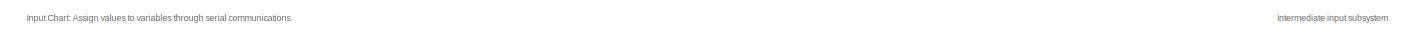
[diagram: root canvas - part 1/7, top left region]
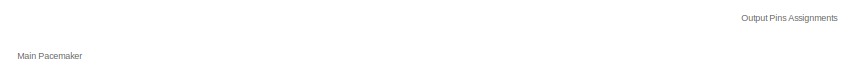
[diagram: root canvas - part 2/7, top right region]
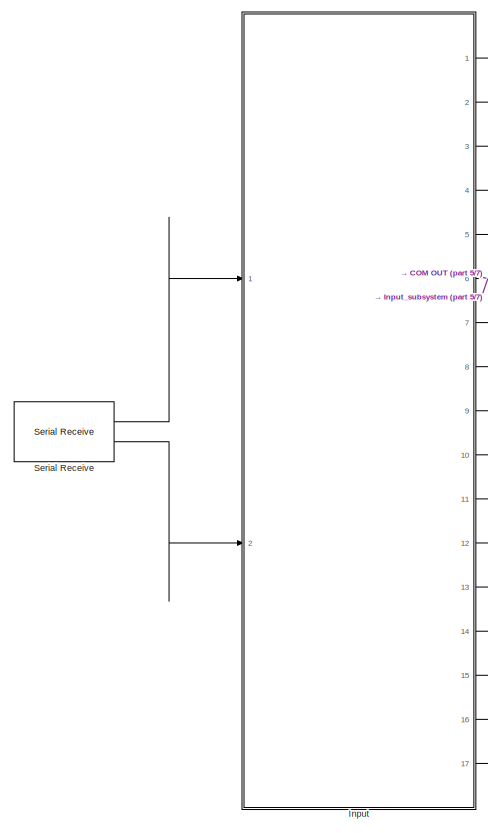
[diagram: root canvas - part 3/7, top left region]
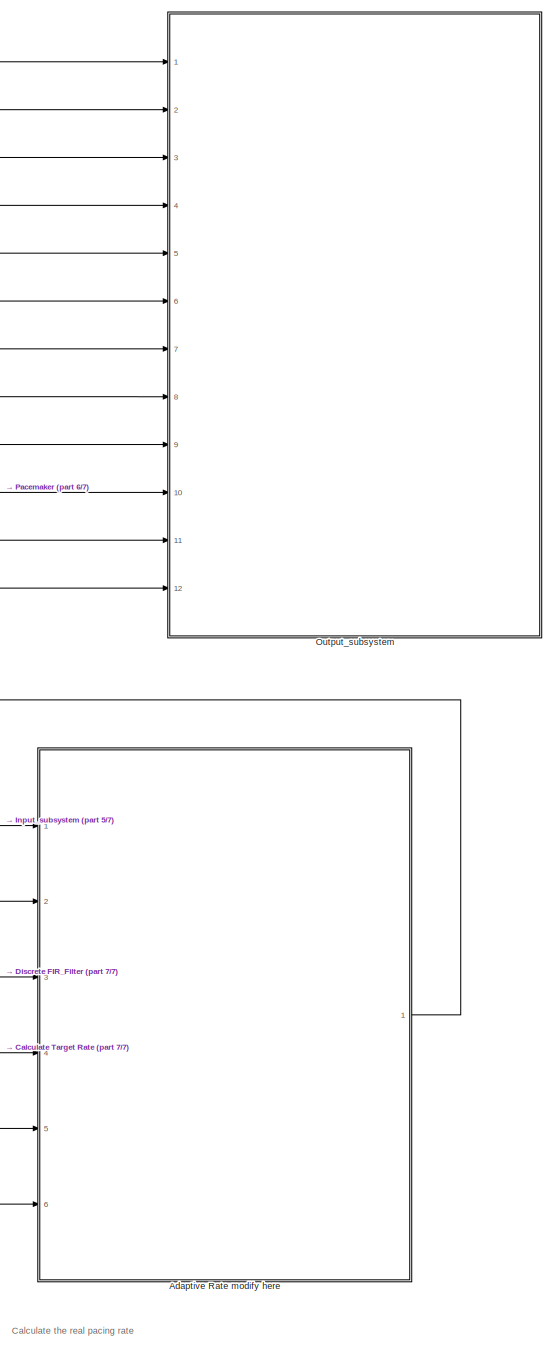
[diagram: root canvas - part 4/7, right side, full height]
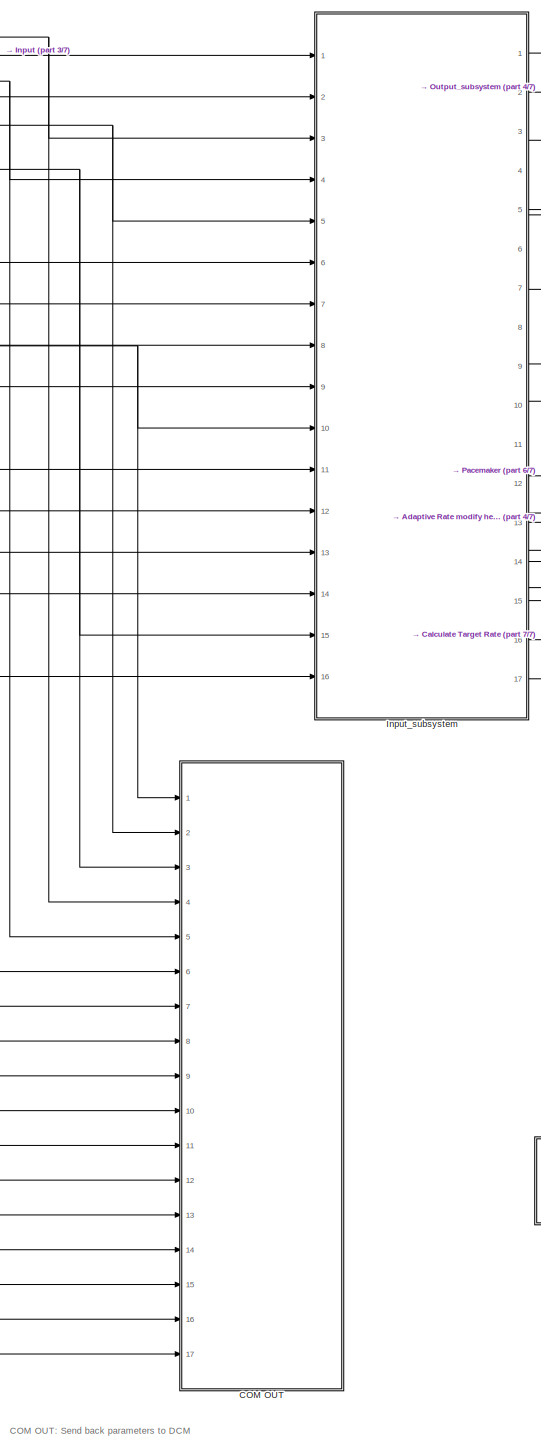
[diagram: root canvas - part 5/7, center side, full height]
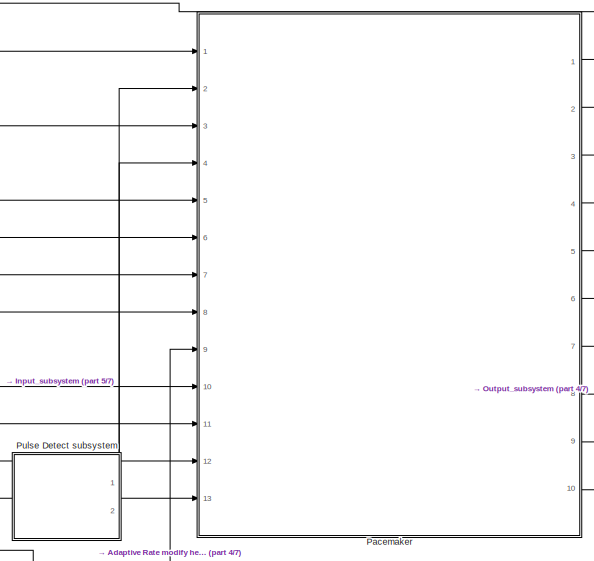
[diagram: root canvas - part 6/7, top right region]
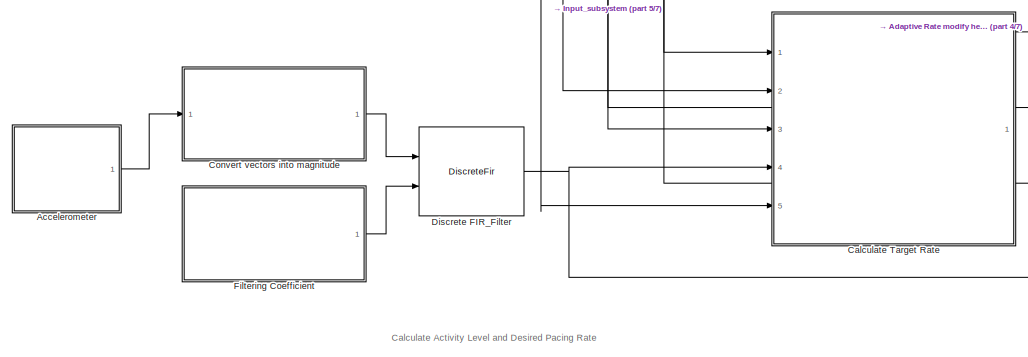
[diagram: root canvas - part 7/7, bottom center region]
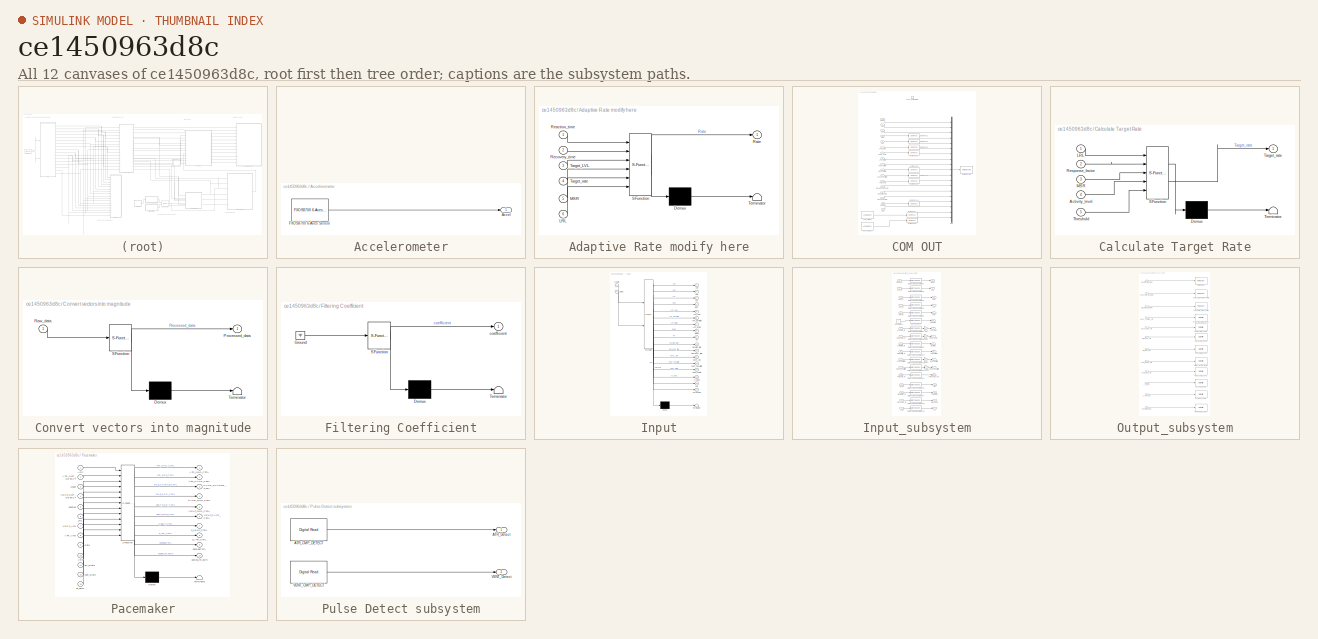
[diagram: thumbnail index - all 12 canvases of the model, root first then tree order]
MODEL slx_ce1450963d8c
KIND model
CONFIG AbsTol = auto
CONFIG EnableMultiTasking = on
CONFIG FixedStep = 1e-3
CONFIG MaxStep = auto
CONFIG MinStep = auto
CONFIG RelTol = 1e-3
CONFIG SampleTimeConstraint = Unconstrained
CONFIG SolverName = FixedStepAuto
CONFIG StartTime = 0.0
CONFIG StopTime = inf
BLOCK [SubSystem] Accelerometer
  Ports = [0, 1]
  RequestExecContextInheritance = off
BLOCK [Outport] Accelerometer/Accel
BLOCK [Reference] Accelerometer/FXOS8700 6-Axes Sensor  REF=frdmk64flib/FXOS8700 6-Axes Sensor
  Ports = [0, 1]
  SourceBlock = frdmk64flib/FXOS8700 6-Axes Sensor
  SourceProductBaseCode = EC_FRDM_K64F
  SourceType = freedomk64f.fxos8700
BLOCK [SubSystem] Adaptive Rate modify here
  ErrorFcn = Stateflow.Translate.translate
  PermitHierarchicalResolution = ExplicitOnly
  PortSchema = {"entries":[{"content":{"sides":[{"content":{"connectorIds":["In6","In5","In1","In2","In4","In3"]},"type":"ConnectorPlacement.EquallySpacedRectSide","uuid":"39a759a2-6776-4dc2-bf13-d3cf12be31b7"},{"content":{"connectorIds":["Out1"],"side":"RIGHT"},"type":"ConnectorPlacement.EquallySpacedRectSide","uuid":"311af287-9fec-40a9-86fa-7b14c4c20eba"},{"content":{"connectorIds":[],"side":"TOP"},"type":"Con...<+270ch>
  Ports = [6, 1]
  RequestExecContextInheritance = off
  SFBlockType = Chart
  TreatAsAtomicUnit = on
BLOCK [Demux] Adaptive Rate modify here/ Demux 
  Outputs = 1
  Ports = [1, 1]
BLOCK [S-Function] Adaptive Rate modify here/ SFunction 
  EnableBusSupport = on
  FunctionName = sf_sfun
  PortCounts = [6 2]
  Ports = [6, 2]
  SFcnIsStateOwnerBlock = off
  SFunctionDeploymentMode = off
  Tag = Stateflow S-Function 8
BLOCK [Terminator] Adaptive Rate modify here/ Terminator 
BLOCK [Inport] Adaptive Rate modify here/LRL
  Port = 6
BLOCK [Inport] Adaptive Rate modify here/MSR
  Port = 5
BLOCK [Outport] Adaptive Rate modify here/Rate
BLOCK [Inport] Adaptive Rate modify here/Reaction_time
BLOCK [Inport] Adaptive Rate modify here/Recovery_time
  Port = 2
BLOCK [Inport] Adaptive Rate modify here/Target_LVL
  Port = 3
BLOCK [Inport] Adaptive Rate modify here/Target_rate
  Port = 4
BLOCK [SubSystem] COM OUT
  Ports = [17, 0, 0, 1]
  RequestExecContextInheritance = off
  TreatAsAtomicUnit = on
BLOCK [Inport] COM OUT/ARP
  OutDataTypeStr = uint16
  Port = 4
BLOCK [Reference] COM OUT/ATR_SIGNAL  REF=frdmk64flib/Analog Input
  Ports = [0, 1]
  SourceBlock = frdmk64flib/Analog Input
  SourceProductBaseCode = EC_FRDM_K64F
  SourceType = freedomk64f.AnalogInput
BLOCK [Inport] COM OUT/ATR_amp
  OutDataTypeStr = single
  Port = 6
BLOCK [Inport] COM OUT/ATR_width
  OutDataTypeStr = uint8
  Port = 8
BLOCK [Reference] COM OUT/Byte Pack1  REF=etargetslib/Byte Pack
  Ports = [1, 1]
  SourceBlock = etargetslib/Byte Pack
  SourceProductBaseCode = ME
  SourceType = Byte pack
BLOCK [Reference] COM OUT/Byte Pack14  REF=etargetslib/Byte Pack
  Ports = [1, 1]
  SourceBlock = etargetslib/Byte Pack
  SourceProductBaseCode = ME
  SourceType = Byte pack
BLOCK [Reference] COM OUT/Byte Pack2  REF=etargetslib/Byte Pack
  Ports = [1, 1]
  SourceBlock = etargetslib/Byte Pack
  SourceProductBaseCode = ME
  SourceType = Byte pack
BLOCK [Reference] COM OUT/Byte Pack3  REF=etargetslib/Byte Pack
  Ports = [1, 1]
  SourceBlock = etargetslib/Byte Pack
  SourceProductBaseCode = ME
  SourceType = Byte pack
BLOCK [Reference] COM OUT/Byte Pack4  REF=etargetslib/Byte Pack
  Ports = [1, 1]
  SourceBlock = etargetslib/Byte Pack
  SourceProductBaseCode = ME
  SourceType = Byte pack
BLOCK [Reference] COM OUT/Byte Pack5  REF=etargetslib/Byte Pack
  Ports = [1, 1]
  SourceBlock = etargetslib/Byte Pack
  SourceProductBaseCode = ME
  SourceType = Byte pack
BLOCK [Reference] COM OUT/Byte Pack6  REF=etargetslib/Byte Pack
  Ports = [1, 1]
  SourceBlock = etargetslib/Byte Pack
  SourceProductBaseCode = ME
  SourceType = Byte pack
BLOCK [Reference] COM OUT/Byte Pack7  REF=etargetslib/Byte Pack
  Ports = [1, 1]
  SourceBlock = etargetslib/Byte Pack
  SourceProductBaseCode = ME
  SourceType = Byte pack
BLOCK [Reference] COM OUT/Byte Pack8  REF=etargetslib/Byte Pack
  Ports = [1, 1]
  SourceBlock = etargetslib/Byte Pack
  SourceProductBaseCode = ME
  SourceType = Byte pack
BLOCK [Reference] COM OUT/Byte Pack9  REF=etargetslib/Byte Pack
  Ports = [1, 1]
  SourceBlock = etargetslib/Byte Pack
  SourceProductBaseCode = ME
  SourceType = Byte pack
BLOCK [Inport] COM OUT/LRL
  OutDataTypeStr = uint8
  Port = 2
BLOCK [Inport] COM OUT/MSR
  OutDataTypeStr = uint8
  Port = 3
BLOCK [Inport] COM OUT/Mode
  OutDataTypeStr = uint8
BLOCK [Mux] COM OUT/Mux
  DisplayOption = bar
  Inputs = 19
  Ports = [19, 1]
BLOCK [Inport] COM OUT/ReactionTime
  OutDataTypeStr = uint8
  Port = 14
BLOCK [Inport] COM OUT/RecoveryTime
  OutDataTypeStr = uint8
  Port = 15
BLOCK [Inport] COM OUT/ResponseFactor
  OutDataTypeStr = uint8
  Port = 13
BLOCK [Reference] COM OUT/Serial Transmit  REF=frdmk64flib/Serial Transmit
  Ports = [1]
  SourceBlock = frdmk64flib/Serial Transmit
  SourceProductBaseCode = EC_FRDM_K64F
  SourceType = freedomk64f.SCIWrite
BLOCK [Inport] COM OUT/Threshold
  OutDataTypeStr = single
  Port = 12
BLOCK [Inport] COM OUT/URL
  OutDataTypeStr = uint8
  Port = 17
BLOCK [Reference] COM OUT/VENT_SIGNAL  REF=frdmk64flib/Analog Input
  Ports = [0, 1]
  SourceBlock = frdmk64flib/Analog Input
  SourceProductBaseCode = EC_FRDM_K64F
  SourceType = freedomk64f.AnalogInput
BLOCK [Inport] COM OUT/VENT_amp
  OutDataTypeStr = single
  Port = 7
BLOCK [Inport] COM OUT/VENT_width
  OutDataTypeStr = uint8
  Port = 9
BLOCK [Inport] COM OUT/VRP
  OutDataTypeStr = uint16
  Port = 5
BLOCK [Inport] COM OUT/atr_sensitivity
  OutDataTypeStr = single
  Port = 10
BLOCK [Inport] COM OUT/avDelay
  OutDataTypeStr = uint16
  Port = 16
BLOCK [TriggerPort] COM OUT/send_parameters
  FunctionName = send_parameters
  IsSimulinkFunction = on
  Ports = []
  StatesWhenEnabling = held
  TriggerType = function-call
  VariantControl = (inherit)
BLOCK [Inport] COM OUT/vent_sensitivity
  OutDataTypeStr = single
  Port = 11
BLOCK [SubSystem] Calculate Target Rate
  ErrorFcn = Stateflow.Translate.translate
  PermitHierarchicalResolution = ExplicitOnly
  Ports = [5, 1]
  RequestExecContextInheritance = off
  SFBlockType = MATLAB Function
  TreatAsAtomicUnit = on
BLOCK [Demux] Calculate Target Rate/ Demux 
  Outputs = 1
  Ports = [1, 1]
BLOCK [S-Function] Calculate Target Rate/ SFunction 
  EnableBusSupport = on
  FunctionName = sf_sfun
  PortCounts = [5 2]
  Ports = [5, 2]
  SFcnIsStateOwnerBlock = off
  SFunctionDeploymentMode = off
  Tag = Stateflow S-Function 6
BLOCK [Terminator] Calculate Target Rate/ Terminator 
BLOCK [Inport] Calculate Target Rate/Activity_level
  Port = 4
BLOCK [Inport] Calculate Target Rate/LRL
BLOCK [Inport] Calculate Target Rate/MSR
  Port = 3
BLOCK [Inport] Calculate Target Rate/Response_factor
  Port = 2
BLOCK [Outport] Calculate Target Rate/Target_rate
BLOCK [Inport] Calculate Target Rate/Threshold
  Port = 5
BLOCK [SubSystem] Convert vectors into magnitude
  ErrorFcn = Stateflow.Translate.translate
  PermitHierarchicalResolution = ExplicitOnly
  Ports = [1, 1]
  RequestExecContextInheritance = off
  SFBlockType = MATLAB Function
  TreatAsAtomicUnit = on
BLOCK [Demux] Convert vectors into magnitude/ Demux 
  Outputs = 1
  Ports = [1, 1]
BLOCK [S-Function] Convert vectors into magnitude/ SFunction 
  EnableBusSupport = on
  FunctionName = sf_sfun
  PortCounts = [1 2]
  Ports = [1, 2]
  SFcnIsStateOwnerBlock = off
  SFunctionDeploymentMode = off
  Tag = Stateflow S-Function 9
BLOCK [Terminator] Convert vectors into magnitude/ Terminator 
BLOCK [Outport] Convert vectors into magnitude/Processed_data
BLOCK [Inport] Convert vectors into magnitude/Raw_data
BLOCK [DiscreteFir] Discrete FIR_Filter
  CoefSource = Input port
  Coefficients = [0.05, 0.05, 0.05, 0.05, 0.05, 0.05, 0.05, 0.05, 0.05, 0.05, 0.05, 0.05, 0.05, 0.05, 0.05, 0.05, 0.05, 0.05, 0.05, 0.05]
  InputPortMap = u0,u1
  OutputPortMap = o0
  Ports = [2, 1]
  SampleTime = 0.01
BLOCK [SubSystem] Filtering Coefficient
  ErrorFcn = Stateflow.Translate.translate
  PermitHierarchicalResolution = ExplicitOnly
  Ports = [0, 1]
  RequestExecContextInheritance = off
  SFBlockType = MATLAB Function
  TreatAsAtomicUnit = on
BLOCK [Demux] Filtering Coefficient/ Demux 
  Outputs = 1
  Ports = [1, 1]
BLOCK [Ground] Filtering Coefficient/ Ground 
BLOCK [S-Function] Filtering Coefficient/ SFunction 
  EnableBusSupport = on
  FunctionName = sf_sfun
  PortCounts = [1 2]
  Ports = [1, 2]
  SFcnIsStateOwnerBlock = off
  SFunctionDeploymentMode = off
  Tag = Stateflow S-Function 3
BLOCK [Terminator] Filtering Coefficient/ Terminator 
BLOCK [Outport] Filtering Coefficient/coefficient
BLOCK [SubSystem] Input
  ErrorFcn = Stateflow.Translate.translate
  PermitHierarchicalResolution = ExplicitOnly
  PortSchema = {"entries":[{"content":{"sides":[{"content":{"connectorIds":["In1","In2"]},"type":"ConnectorPlacement.EquallySpacedRectSide","uuid":"ee3611de-e013-4c9d-af16-b184b46b299a"},{"content":{"connectorIds":["Out6","Out13","Out1","Out2","Out3","Out5","Out7","Out12","Out14","Out8","Out15","Out10","Out11","Out9","Out4","Out17","Out16"],"side":"RIGHT"},"type":"ConnectorPlacement.EquallySpacedRectSide","uuid"...<+366ch>
  Ports = [2, 17]
  RequestExecContextInheritance = off
  SFBlockType = Chart
  TreatAsAtomicUnit = on
BLOCK [Demux] Input/ Demux 
  Outputs = 1
  Ports = [1, 1]
BLOCK [S-Function] Input/ SFunction 
  EnableBusSupport = on
  FunctionName = sf_sfun
  PortCounts = [2 18]
  Ports = [2, 18]
  SFcnIsStateOwnerBlock = off
  SFunctionDeploymentMode = off
  Tag = Stateflow S-Function 1
BLOCK [Terminator] Input/ Terminator 
BLOCK [Outport] Input/ARP
BLOCK [Outport] Input/ATR_Amp
  Port = 5
BLOCK [Outport] Input/ATR_Sensitivity
  Port = 6
BLOCK [Outport] Input/ATR_Width
  Port = 7
BLOCK [Outport] Input/AV_delay
  Port = 15
BLOCK [Outport] Input/LRL
  Port = 3
BLOCK [Outport] Input/MSR
  Port = 4
BLOCK [Outport] Input/Mode
  Port = 8
BLOCK [Outport] Input/RF
  Port = 9
BLOCK [Outport] Input/Reaction_time
  Port = 10
BLOCK [Outport] Input/Recovery_time
  Port = 11
BLOCK [Outport] Input/Threshold
  Port = 17
BLOCK [Outport] Input/URL
  Port = 16
BLOCK [Outport] Input/VENT_Amp
  Port = 12
BLOCK [Outport] Input/VENT_Sensitivity
  Port = 13
BLOCK [Outport] Input/VENT_Width
  Port = 14
BLOCK [Outport] Input/VRP
  Port = 2
BLOCK [Inport] Input/rxdata
BLOCK [Inport] Input/status
  Port = 2
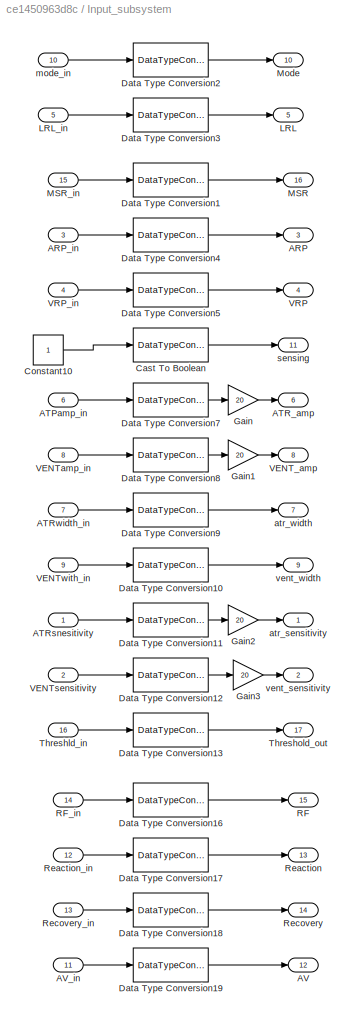
BLOCK [SubSystem] Input_subsystem
  Ports = [16, 17]
  RequestExecContextInheritance = off
BLOCK [Outport] Input_subsystem/ARP
  Port = 3
BLOCK [Inport] Input_subsystem/ARP_in
  Port = 3
  Unit = ms
BLOCK [Inport] Input_subsystem/ATPamp_in
  Port = 6
  Unit = ms
BLOCK [Outport] Input_subsystem/ATR_amp
  Port = 6
BLOCK [Inport] Input_subsystem/ATRsnesitivity
  Unit = ms
BLOCK [Inport] Input_subsystem/ATRwidth_in
  Port = 7
  Unit = ms
BLOCK [Outport] Input_subsystem/AV
  Port = 12
BLOCK [Inport] Input_subsystem/AV_in
  Port = 11
  Unit = ms
BLOCK [DataTypeConversion] Input_subsystem/Cast To Boolean
  OutDataTypeStr = boolean
  RndMeth = Floor
  SaturateOnIntegerOverflow = off
BLOCK [Constant] Input_subsystem/Constant10
BLOCK [DataTypeConversion] Input_subsystem/Data Type Conversion1
  OutDataTypeStr = double
  RndMeth = Floor
  SaturateOnIntegerOverflow = off
BLOCK [DataTypeConversion] Input_subsystem/Data Type Conversion10
  OutDataTypeStr = double
  RndMeth = Floor
  SaturateOnIntegerOverflow = off
BLOCK [DataTypeConversion] Input_subsystem/Data Type Conversion11
  OutDataTypeStr = double
  RndMeth = Floor
  SaturateOnIntegerOverflow = off
BLOCK [DataTypeConversion] Input_subsystem/Data Type Conversion12
  OutDataTypeStr = double
  RndMeth = Floor
  SaturateOnIntegerOverflow = off
BLOCK [DataTypeConversion] Input_subsystem/Data Type Conversion13
  OutDataTypeStr = double
  RndMeth = Floor
  SaturateOnIntegerOverflow = off
BLOCK [DataTypeConversion] Input_subsystem/Data Type Conversion16
  OutDataTypeStr = double
  RndMeth = Floor
  SaturateOnIntegerOverflow = off
BLOCK [DataTypeConversion] Input_subsystem/Data Type Conversion17
  OutDataTypeStr = double
  RndMeth = Floor
  SaturateOnIntegerOverflow = off
BLOCK [DataTypeConversion] Input_subsystem/Data Type Conversion18
  OutDataTypeStr = double
  RndMeth = Floor
  SaturateOnIntegerOverflow = off
BLOCK [DataTypeConversion] Input_subsystem/Data Type Conversion19
  OutDataTypeStr = double
  RndMeth = Floor
  SaturateOnIntegerOverflow = off
BLOCK [DataTypeConversion] Input_subsystem/Data Type Conversion2
  OutDataTypeStr = double
  RndMeth = Floor
  SaturateOnIntegerOverflow = off
BLOCK [DataTypeConversion] Input_subsystem/Data Type Conversion3
  OutDataTypeStr = double
  RndMeth = Floor
  SaturateOnIntegerOverflow = off
BLOCK [DataTypeConversion] Input_subsystem/Data Type Conversion4
  OutDataTypeStr = double
  RndMeth = Floor
  SaturateOnIntegerOverflow = off
BLOCK [DataTypeConversion] Input_subsystem/Data Type Conversion5
  OutDataTypeStr = double
  RndMeth = Floor
  SaturateOnIntegerOverflow = off
BLOCK [DataTypeConversion] Input_subsystem/Data Type Conversion7
  OutDataTypeStr = double
  RndMeth = Floor
  SaturateOnIntegerOverflow = off
BLOCK [DataTypeConversion] Input_subsystem/Data Type Conversion8
  OutDataTypeStr = double
  RndMeth = Floor
  SaturateOnIntegerOverflow = off
BLOCK [DataTypeConversion] Input_subsystem/Data Type Conversion9
  OutDataTypeStr = double
  RndMeth = Floor
  SaturateOnIntegerOverflow = off
BLOCK [Gain] Input_subsystem/Gain
  Gain = 20
BLOCK [Gain] Input_subsystem/Gain1
  Gain = 20
BLOCK [Gain] Input_subsystem/Gain2
  Gain = 20
BLOCK [Gain] Input_subsystem/Gain3
  Gain = 20
BLOCK [Outport] Input_subsystem/LRL
  Port = 5
BLOCK [Inport] Input_subsystem/LRL_in
  Port = 5
  Unit = ms
BLOCK [Outport] Input_subsystem/MSR
  Port = 16
BLOCK [Inport] Input_subsystem/MSR_in
  Port = 15
  Unit = ms
BLOCK [Outport] Input_subsystem/Mode
  Port = 10
BLOCK [Outport] Input_subsystem/RF
  Port = 15
BLOCK [Inport] Input_subsystem/RF_in
  Port = 14
  Unit = ms
BLOCK [Outport] Input_subsystem/Reaction
  Port = 13
BLOCK [Inport] Input_subsystem/Reaction_in
  Port = 12
  Unit = ms
BLOCK [Outport] Input_subsystem/Recovery
  Port = 14
BLOCK [Inport] Input_subsystem/Recovery_in
  Port = 13
  Unit = ms
BLOCK [Inport] Input_subsystem/Threshld_in
  Port = 16
  Unit = ms
BLOCK [Outport] Input_subsystem/Threshold_out
  Port = 17
BLOCK [Outport] Input_subsystem/VENT_amp
  Port = 8
BLOCK [Inport] Input_subsystem/VENTamp_in
  Port = 8
  Unit = ms
BLOCK [Inport] Input_subsystem/VENTsensitivity
  Port = 2
  Unit = ms
BLOCK [Inport] Input_subsystem/VENTwith_in
  Port = 9
  Unit = ms
BLOCK [Outport] Input_subsystem/VRP
  Port = 4
BLOCK [Inport] Input_subsystem/VRP_in
  Port = 4
  Unit = ms
BLOCK [Outport] Input_subsystem/atr_sensitivity
BLOCK [Outport] Input_subsystem/atr_width
  Port = 7
BLOCK [Inport] Input_subsystem/mode_in
  Port = 10
  Unit = ms
BLOCK [Outport] Input_subsystem/sensing
  Port = 11
BLOCK [Outport] Input_subsystem/vent_sensitivity
  Port = 2
BLOCK [Outport] Input_subsystem/vent_width
  Port = 9
BLOCK [SubSystem] Output_subsystem
  Ports = [12]
  RequestExecContextInheritance = off
BLOCK [Inport] Output_subsystem/ z_vent_ctrl
  Port = 10
BLOCK [Reference] Output_subsystem/ATR_CMP_REF_PWM  REF=frdmk64flib/PWM Output
  Ports = [1]
  SourceBlock = frdmk64flib/PWM Output
  SourceProductBaseCode = EC_FRDM_K64F
  SourceType = freedomk64f.PWMOutput
BLOCK [Reference] Output_subsystem/ATR_GND_CTR  REF=frdmk64flib/Digital Write
  Ports = [1]
  SourceBlock = frdmk64flib/Digital Write
  SourceProductBaseCode = EC_FRDM_K64F
  SourceType = freedomk64f.DigitalWrite
BLOCK [Reference] Output_subsystem/ATR_PACE_CTRL  REF=frdmk64flib/Digital Write
  Ports = [1]
  SourceBlock = frdmk64flib/Digital Write
  SourceProductBaseCode = EC_FRDM_K64F
  SourceType = freedomk64f.DigitalWrite
BLOCK [Reference] Output_subsystem/FRONTEND_CTRL  REF=frdmk64flib/Digital Write
  Ports = [1]
  SourceBlock = frdmk64flib/Digital Write
  SourceProductBaseCode = EC_FRDM_K64F
  SourceType = freedomk64f.DigitalWrite
BLOCK [Reference] Output_subsystem/PACE_CHARGE_CTRL  REF=frdmk64flib/Digital Write
  Ports = [1]
  SourceBlock = frdmk64flib/Digital Write
  SourceProductBaseCode = EC_FRDM_K64F
  SourceType = freedomk64f.DigitalWrite
BLOCK [Reference] Output_subsystem/PACE_GND_CTRL  REF=frdmk64flib/Digital Write
  Ports = [1]
  SourceBlock = frdmk64flib/Digital Write
  SourceProductBaseCode = EC_FRDM_K64F
  SourceType = freedomk64f.DigitalWrite
BLOCK [Reference] Output_subsystem/PWM Output  REF=frdmk64flib/PWM Output
  Ports = [1]
  SourceBlock = frdmk64flib/PWM Output
  SourceProductBaseCode = EC_FRDM_K64F
  SourceType = freedomk64f.PWMOutput
BLOCK [Reference] Output_subsystem/VENT_CMP_REF_PWM  REF=frdmk64flib/PWM Output
  Ports = [1]
  SourceBlock = frdmk64flib/PWM Output
  SourceProductBaseCode = EC_FRDM_K64F
  SourceType = freedomk64f.PWMOutput
BLOCK [Reference] Output_subsystem/VENT_GND_CTRL  REF=frdmk64flib/Digital Write
  Ports = [1]
  SourceBlock = frdmk64flib/Digital Write
  SourceProductBaseCode = EC_FRDM_K64F
  SourceType = freedomk64f.DigitalWrite
BLOCK [Reference] Output_subsystem/VENT_PACE_CTRL  REF=frdmk64flib/Digital Write
  Ports = [1]
  SourceBlock = frdmk64flib/Digital Write
  SourceProductBaseCode = EC_FRDM_K64F
  SourceType = freedomk64f.DigitalWrite
BLOCK [Reference] Output_subsystem/Z_ATR_CTRL  REF=frdmk64flib/Digital Write
  Ports = [1]
  SourceBlock = frdmk64flib/Digital Write
  SourceProductBaseCode = EC_FRDM_K64F
  SourceType = freedomk64f.DigitalWrite
BLOCK [Reference] Output_subsystem/Z_VENT_CTRL  REF=frdmk64flib/Digital Write
  Ports = [1]
  SourceBlock = frdmk64flib/Digital Write
  SourceProductBaseCode = EC_FRDM_K64F
  SourceType = freedomk64f.DigitalWrite
BLOCK [Inport] Output_subsystem/atr_cmp_ref_pwm
BLOCK [Inport] Output_subsystem/atr_gnd_ctrl
  Port = 4
BLOCK [Inport] Output_subsystem/atr_pace_ctrl
  Port = 7
BLOCK [Inport] Output_subsystem/pace_charge_ctrl
  Port = 5
BLOCK [Inport] Output_subsystem/pace_gnd_ctrl
  Port = 6
BLOCK [Inport] Output_subsystem/pacing_ref_pwm
  Port = 3
BLOCK [Inport] Output_subsystem/sensingCTRL
  Port = 12
BLOCK [Inport] Output_subsystem/vent_cmp_ref_pwm
  Port = 2
BLOCK [Inport] Output_subsystem/vent_gnd_ctrl
  Port = 9
BLOCK [Inport] Output_subsystem/vent_pace_ctrl
  Port = 8
BLOCK [Inport] Output_subsystem/z_atr_ctrl
  Port = 11
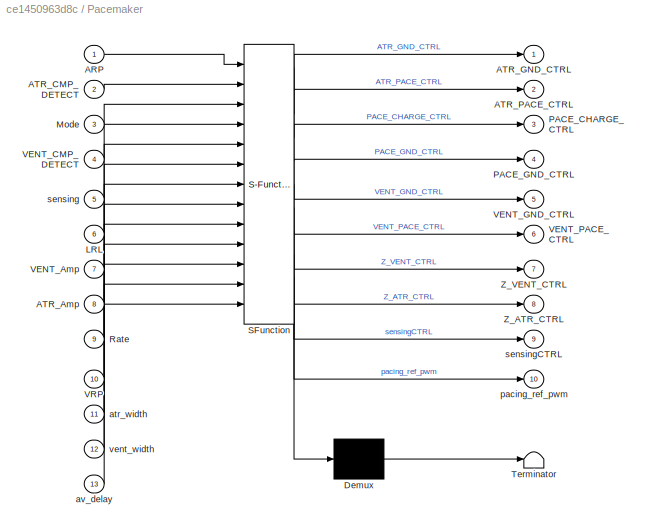
BLOCK [SubSystem] Pacemaker
  ErrorFcn = Stateflow.Translate.translate
  PermitHierarchicalResolution = ExplicitOnly
  PortSchema = {"entries":[{"content":{"sides":[{"content":{"connectorIds":["In1","In10","In6","In8","In11","In7","In12","In3","In5","In13","In9","In2","In4"]},"type":"ConnectorPlacement.EquallySpacedRectSide","uuid":"2ef21990-d536-4d68-b59e-2b2ea3a8851a"},{"content":{"connectorIds":["Out10","Out1","Out3","Out4","Out2","Out6","Out5","Out7","Out8","Out9"],"side":"RIGHT"},"type":"ConnectorPlacement.EquallySpacedRe...<+524ch>
  Ports = [13, 10]
  RequestExecContextInheritance = off
  SFBlockType = Chart
  TreatAsAtomicUnit = on
BLOCK [Demux] Pacemaker/ Demux 
  Outputs = 1
  Ports = [1, 1]
BLOCK [S-Function] Pacemaker/ SFunction 
  EnableBusSupport = on
  FunctionName = sf_sfun
  PortCounts = [13 11]
  Ports = [13, 11]
  SFcnIsStateOwnerBlock = off
  SFunctionDeploymentMode = off
  Tag = Stateflow S-Function 2
BLOCK [Terminator] Pacemaker/ Terminator 
BLOCK [Inport] Pacemaker/ARP
BLOCK [Inport] Pacemaker/ATR_Amp
  Port = 8
BLOCK [Inport] Pacemaker/ATR_CMP_DETECT
  Port = 2
BLOCK [Outport] Pacemaker/ATR_GND_CTRL
BLOCK [Outport] Pacemaker/ATR_PACE_CTRL
  Port = 2
BLOCK [Inport] Pacemaker/LRL
  Port = 6
BLOCK [Inport] Pacemaker/Mode
  Port = 3
BLOCK [Outport] Pacemaker/PACE_CHARGE_CTRL
  Port = 3
BLOCK [Outport] Pacemaker/PACE_GND_CTRL
  Port = 4
BLOCK [Inport] Pacemaker/Rate
  Port = 9
BLOCK [Inport] Pacemaker/VENT_Amp
  Port = 7
BLOCK [Inport] Pacemaker/VENT_CMP_DETECT
  Port = 4
BLOCK [Outport] Pacemaker/VENT_GND_CTRL
  Port = 5
BLOCK [Outport] Pacemaker/VENT_PACE_CTRL
  Port = 6
BLOCK [Inport] Pacemaker/VRP
  Port = 10
BLOCK [Outport] Pacemaker/Z_ATR_CTRL
  Port = 8
BLOCK [Outport] Pacemaker/Z_VENT_CTRL
  Port = 7
BLOCK [Inport] Pacemaker/atr_width
  Port = 11
BLOCK [Inport] Pacemaker/av_delay
  Port = 13
BLOCK [Outport] Pacemaker/pacing_ref_pwm
  Port = 10
BLOCK [Inport] Pacemaker/sensing
  Port = 5
BLOCK [Outport] Pacemaker/sensingCTRL
  Port = 9
BLOCK [Inport] Pacemaker/vent_width
  Port = 12
BLOCK [SubSystem] Pulse Detect subsystem
  Ports = [0, 2]
  RequestExecContextInheritance = off
BLOCK [Reference] Pulse Detect subsystem/ATR_CMP_DETECT  REF=frdmk64flib/Digital Read
  Ports = [0, 1]
  SourceBlock = frdmk64flib/Digital Read
  SourceProductBaseCode = EC_FRDM_K64F
  SourceType = freedomk64f.DigitalRead
BLOCK [Outport] Pulse Detect subsystem/ATR_Detect
  OutDataTypeStr = boolean
BLOCK [Reference] Pulse Detect subsystem/VENT_CMP_DETECT  REF=frdmk64flib/Digital Read
  Ports = [0, 1]
  SourceBlock = frdmk64flib/Digital Read
  SourceProductBaseCode = EC_FRDM_K64F
  SourceType = freedomk64f.DigitalRead
BLOCK [Outport] Pulse Detect subsystem/VENT_Detect
  OutDataTypeStr = boolean
  Port = 2
BLOCK [Reference] Serial Receive  REF=frdmk64flib/Serial Receive
  Ports = [0, 2]
  SourceBlock = frdmk64flib/Serial Receive
  SourceProductBaseCode = EC_FRDM_K64F
  SourceType = freedomk64f.SCIRead
ANNOTATION (root): COM OUT: Send back parameters to DCM
ANNOTATION (root): Calculate Activity Level and Desired Pacing Rate
ANNOTATION (root): Calculate the real pacing rate
ANNOTATION (root): Intermediate input subsystem
ANNOTATION (root): Output Pins Assignments
ANNOTATION (root): Input Chart: Assign values to variables through serial communications
ANNOTATION (root): Main Pacemaker
LINE Accelerometer/FXOS8700 6-Axes Sensor:1 -> Accelerometer/Accel:1
LINE Accelerometer:1 -> Convert vectors into magnitude:1
LINE Adaptive Rate modify here:1 -> Pacemaker:9
LINE COM OUT/ARP:1 -> COM OUT/Byte Pack1:1
LINE COM OUT/ATR_SIGNAL:1 -> COM OUT/Byte Pack7:1
LINE COM OUT/ATR_amp:1 -> COM OUT/Byte Pack4:1
LINE COM OUT/ATR_width:1 -> COM OUT/Mux:8
LINE COM OUT/Byte Pack14:1 -> COM OUT/Mux:16
LINE COM OUT/Byte Pack1:1 -> COM OUT/Mux:4
LINE COM OUT/Byte Pack2:1 -> COM OUT/Mux:5
LINE COM OUT/Byte Pack3:1 -> COM OUT/Mux:7
LINE COM OUT/Byte Pack4:1 -> COM OUT/Mux:6
LINE COM OUT/Byte Pack5:1 -> COM OUT/Mux:10
LINE COM OUT/Byte Pack6:1 -> COM OUT/Mux:11
LINE COM OUT/Byte Pack7:1 -> COM OUT/Mux:18
LINE COM OUT/Byte Pack8:1 -> COM OUT/Mux:19
LINE COM OUT/Byte Pack9:1 -> COM OUT/Mux:12
LINE COM OUT/LRL:1 -> COM OUT/Mux:2
LINE COM OUT/MSR:1 -> COM OUT/Mux:3
LINE COM OUT/Mode:1 -> COM OUT/Mux:1
LINE COM OUT/Mux:1 -> COM OUT/Serial Transmit:1
LINE COM OUT/ReactionTime:1 -> COM OUT/Mux:14
LINE COM OUT/RecoveryTime:1 -> COM OUT/Mux:15
LINE COM OUT/ResponseFactor:1 -> COM OUT/Mux:13
LINE COM OUT/Threshold:1 -> COM OUT/Byte Pack9:1
LINE COM OUT/URL:1 -> COM OUT/Mux:17
LINE COM OUT/VENT_SIGNAL:1 -> COM OUT/Byte Pack8:1
LINE COM OUT/VENT_amp:1 -> COM OUT/Byte Pack3:1
LINE COM OUT/VENT_width:1 -> COM OUT/Mux:9
LINE COM OUT/VRP:1 -> COM OUT/Byte Pack2:1
LINE COM OUT/atr_sensitivity:1 -> COM OUT/Byte Pack5:1
LINE COM OUT/avDelay:1 -> COM OUT/Byte Pack14:1
LINE COM OUT/vent_sensitivity:1 -> COM OUT/Byte Pack6:1
LINE Calculate Target Rate:1 -> Adaptive Rate modify here:4
LINE Convert vectors into magnitude:1 -> Discrete FIR_Filter:1
NET Discrete FIR_Filter:1 -> Adaptive Rate modify here:3, Calculate Target Rate:4
LINE Filtering Coefficient:1 -> Discrete FIR_Filter:2
NET Input:1 -> COM OUT:4, Input_subsystem:3
NET Input:10 -> COM OUT:14, Input_subsystem:12
NET Input:11 -> COM OUT:15, Input_subsystem:13
NET Input:12 -> COM OUT:7, Input_subsystem:8
NET Input:13 -> COM OUT:11, Input_subsystem:2
NET Input:14 -> COM OUT:9, Input_subsystem:9
NET Input:15 -> COM OUT:16, Input_subsystem:11
LINE Input:16 -> COM OUT:17
NET Input:17 -> COM OUT:12, Input_subsystem:16
NET Input:2 -> COM OUT:5, Input_subsystem:4
NET Input:3 -> COM OUT:2, Input_subsystem:5
NET Input:4 -> COM OUT:3, Input_subsystem:15
NET Input:5 -> COM OUT:6, Input_subsystem:6
NET Input:6 -> COM OUT:10, Input_subsystem:1
NET Input:7 -> COM OUT:8, Input_subsystem:7
NET Input:8 -> COM OUT:1, Input_subsystem:10
NET Input:9 -> COM OUT:13, Input_subsystem:14
LINE Input_subsystem/ARP_in:1 -> Input_subsystem/Data Type Conversion4:1
LINE Input_subsystem/ATPamp_in:1 -> Input_subsystem/Data Type Conversion7:1
LINE Input_subsystem/ATRsnesitivity:1 -> Input_subsystem/Data Type Conversion11:1
LINE Input_subsystem/ATRwidth_in:1 -> Input_subsystem/Data Type Conversion9:1
LINE Input_subsystem/AV_in:1 -> Input_subsystem/Data Type Conversion19:1
LINE Input_subsystem/Cast To Boolean:1 -> Input_subsystem/sensing:1
LINE Input_subsystem/Constant10:1 -> Input_subsystem/Cast To Boolean:1
LINE Input_subsystem/Data Type Conversion10:1 -> Input_subsystem/vent_width:1
LINE Input_subsystem/Data Type Conversion11:1 -> Input_subsystem/Gain2:1
LINE Input_subsystem/Data Type Conversion12:1 -> Input_subsystem/Gain3:1
LINE Input_subsystem/Data Type Conversion13:1 -> Input_subsystem/Threshold_out:1
LINE Input_subsystem/Data Type Conversion16:1 -> Input_subsystem/RF:1
LINE Input_subsystem/Data Type Conversion17:1 -> Input_subsystem/Reaction:1
LINE Input_subsystem/Data Type Conversion18:1 -> Input_subsystem/Recovery:1
LINE Input_subsystem/Data Type Conversion19:1 -> Input_subsystem/AV:1
LINE Input_subsystem/Data Type Conversion1:1 -> Input_subsystem/MSR:1
LINE Input_subsystem/Data Type Conversion2:1 -> Input_subsystem/Mode:1
LINE Input_subsystem/Data Type Conversion3:1 -> Input_subsystem/LRL:1
LINE Input_subsystem/Data Type Conversion4:1 -> Input_subsystem/ARP:1
LINE Input_subsystem/Data Type Conversion5:1 -> Input_subsystem/VRP:1
LINE Input_subsystem/Data Type Conversion7:1 -> Input_subsystem/Gain:1
LINE Input_subsystem/Data Type Conversion8:1 -> Input_subsystem/Gain1:1
LINE Input_subsystem/Data Type Conversion9:1 -> Input_subsystem/atr_width:1
LINE Input_subsystem/Gain1:1 -> Input_subsystem/VENT_amp:1
LINE Input_subsystem/Gain2:1 -> Input_subsystem/atr_sensitivity:1
LINE Input_subsystem/Gain3:1 -> Input_subsystem/vent_sensitivity:1
LINE Input_subsystem/Gain:1 -> Input_subsystem/ATR_amp:1
LINE Input_subsystem/LRL_in:1 -> Input_subsystem/Data Type Conversion3:1
LINE Input_subsystem/MSR_in:1 -> Input_subsystem/Data Type Conversion1:1
LINE Input_subsystem/RF_in:1 -> Input_subsystem/Data Type Conversion16:1
LINE Input_subsystem/Reaction_in:1 -> Input_subsystem/Data Type Conversion17:1
LINE Input_subsystem/Recovery_in:1 -> Input_subsystem/Data Type Conversion18:1
LINE Input_subsystem/Threshld_in:1 -> Input_subsystem/Data Type Conversion13:1
LINE Input_subsystem/VENTamp_in:1 -> Input_subsystem/Data Type Conversion8:1
LINE Input_subsystem/VENTsensitivity:1 -> Input_subsystem/Data Type Conversion12:1
LINE Input_subsystem/VENTwith_in:1 -> Input_subsystem/Data Type Conversion10:1
LINE Input_subsystem/VRP_in:1 -> Input_subsystem/Data Type Conversion5:1
LINE Input_subsystem/mode_in:1 -> Input_subsystem/Data Type Conversion2:1
LINE Input_subsystem:1 -> Output_subsystem:1
LINE Input_subsystem:10 -> Pacemaker:3
LINE Input_subsystem:11 -> Pacemaker:5
LINE Input_subsystem:12 -> Pacemaker:13
LINE Input_subsystem:13 -> Adaptive Rate modify here:1
LINE Input_subsystem:14 -> Adaptive Rate modify here:2
LINE Input_subsystem:15 -> Calculate Target Rate:2
NET Input_subsystem:16 -> Adaptive Rate modify here:5, Calculate Target Rate:3
LINE Input_subsystem:17 -> Calculate Target Rate:5
LINE Input_subsystem:2 -> Output_subsystem:2
LINE Input_subsystem:3 -> Pacemaker:1
LINE Input_subsystem:4 -> Pacemaker:10
NET Input_subsystem:5 -> Adaptive Rate modify here:6, Calculate Target Rate:1, Pacemaker:6
LINE Input_subsystem:6 -> Pacemaker:8
LINE Input_subsystem:7 -> Pacemaker:11
LINE Input_subsystem:8 -> Pacemaker:7
LINE Input_subsystem:9 -> Pacemaker:12
LINE Output_subsystem/ z_vent_ctrl:1 -> Output_subsystem/Z_VENT_CTRL:1
LINE Output_subsystem/atr_cmp_ref_pwm:1 -> Output_subsystem/ATR_CMP_REF_PWM:1
LINE Output_subsystem/atr_gnd_ctrl:1 -> Output_subsystem/ATR_GND_CTR:1
LINE Output_subsystem/atr_pace_ctrl:1 -> Output_subsystem/ATR_PACE_CTRL:1
LINE Output_subsystem/pace_charge_ctrl:1 -> Output_subsystem/PACE_CHARGE_CTRL:1
LINE Output_subsystem/pace_gnd_ctrl:1 -> Output_subsystem/PACE_GND_CTRL:1
LINE Output_subsystem/pacing_ref_pwm:1 -> Output_subsystem/PWM Output:1
LINE Output_subsystem/sensingCTRL:1 -> Output_subsystem/FRONTEND_CTRL:1
LINE Output_subsystem/vent_cmp_ref_pwm:1 -> Output_subsystem/VENT_CMP_REF_PWM:1
LINE Output_subsystem/vent_gnd_ctrl:1 -> Output_subsystem/VENT_GND_CTRL:1
LINE Output_subsystem/vent_pace_ctrl:1 -> Output_subsystem/VENT_PACE_CTRL:1
LINE Output_subsystem/z_atr_ctrl:1 -> Output_subsystem/Z_ATR_CTRL:1
LINE Pacemaker:1 -> Output_subsystem:4
LINE Pacemaker:10 -> Output_subsystem:3
LINE Pacemaker:2 -> Output_subsystem:7
LINE Pacemaker:3 -> Output_subsystem:5
LINE Pacemaker:4 -> Output_subsystem:6
LINE Pacemaker:5 -> Output_subsystem:9
LINE Pacemaker:6 -> Output_subsystem:8
LINE Pacemaker:7 -> Output_subsystem:10
LINE Pacemaker:8 -> Output_subsystem:11
LINE Pacemaker:9 -> Output_subsystem:12
LINE Pulse Detect subsystem/ATR_CMP_DETECT:1 -> Pulse Detect subsystem/ATR_Detect:1
LINE Pulse Detect subsystem/VENT_CMP_DETECT:1 -> Pulse Detect subsystem/VENT_Detect:1
LINE Pulse Detect subsystem:1 -> Pacemaker:2
LINE Pulse Detect subsystem:2 -> Pacemaker:4
LINE Serial Receive:1 -> Input:1
LINE Serial Receive:2 -> Input:2
note: NET lines group one-source signal fan-out (src -> all destinations, sorted); 1:1 wires keep LINE
CHART Input states=4 transitions=8
  STATE_LABEL "SET_PARAM\nentry:\nMode = rxdata(3);\nLRL = rxdata(4);\nMSR = rxdata(5);\nARP =  typecast(rxdata(6:7), 'uint16');\nVRP = typecast(rxdata(8:9), 'uint16');\nATR_Amp = typecast(rxdata(10:13),'single');\nVENT_Amp = typecast(rxdata(14:17),'single');\nATR_Width = rxdata(18);\nVENT_Width = rxdata(19);\nATR_Sensitivity = typecast(rxdata(20:23), 'single');\nVENT_Sensitivity = typecast(rxdata(24:27), 'single');\nThresho...<+175ch>"
  STATE_LABEL 'Initialize\nentry:\nMode = 1; %select mode:1-10\nLRL = 60; %ppm\nMSR = 160; %ppm\nARP = 250; %msec\nVRP = 250; %msec\nATR_Amp = 3.3; %Volt, will convert to dutycycle later\nVENT_Amp = 3.3; %Volt, will convert to dutycycle later\nATR_Width = 10; %msec\nVENT_Width = 10; %msec\nATR_Sensitivity = 3; %Volt, will convert to dutycycle later\nVENT_Sensitivity = 3; %Volt, will convert to dutycycle later\nThreshold = 1....<+153ch>'
  STATE_LABEL 'STANDBY\n%Waiting for COM'
  STATE_LABEL 'ECHO_PARAMETERS\nentry:\nsend_parameters();\n'
CHART Pacemaker states=41 transitions=65
  STATE_LABEL 'VOO'
  STATE_LABEL 'Charging_Discharging\nentry:\npacing_ref_pwm = VENT_Amp;\npacing_period = (60000/LRL);\nATR_PACE_CTRL = false;\nATR_GND_CTRL = false;\nVENT_PACE_CTRL = false;\nVENT_GND_CTRL = true;\nPACE_GND_CTRL = true;\nZ_ATR_CTRL = false;\nZ_VENT_CTRL = false;\nPACE_CHARGE_CTRL = true;\n'
  STATE_LABEL 'Pacing\nentry:\nPACE_CHARGE_CTRL = false;\nATR_PACE_CTRL = false;\nATR_GND_CTRL = false;\nVENT_PACE_CTRL = true;\nVENT_GND_CTRL = false;\nPACE_GND_CTRL = true;\nZ_ATR_CTRL = false;\nZ_VENT_CTRL = false;\n'  <repeated x4 — deduplicated; at blocks: Pacemaker>
  STATE_LABEL 'after((pacing_period-vent_width),msec)'
  STATE_LABEL 'after(vent_width,msec)'
  STATE_LABEL 'Charging_Discharging\nentry:\npacing_ref_pwm = VENT_Amp;\npacing_period = (60000/LRL);\nATR_PACE_CTRL = false;\nATR_GND_CTRL = false;\nVENT_PACE_CTRL = false;\nVENT_GND_CTRL = true;\nPACE_GND_CTRL = true;\nZ_ATR_CTRL = false;\nZ_VENT_CTRL = false;\nPACE_CHARGE_CTRL = true;\n'
  STATE_LABEL 'VVI'
  STATE_LABEL 'Charging_Discharging\nentry:\npacing_ref_pwm = VENT_Amp;\npacing_period = (60000/LRL);\nsensingCTRL = sensing;\nATR_PACE_CTRL = false;\nATR_GND_CTRL = false;\nVENT_PACE_CTRL = false;\nVENT_GND_CTRL = true;\nPACE_GND_CTRL = true;\nZ_ATR_CTRL = false;\nZ_VENT_CTRL = false;\nPACE_CHARGE_CTRL = true;\n'
  STATE_LABEL 'Pacing\nentry:\nATR_PACE_CTRL = false;\nATR_GND_CTRL = false;\nVENT_PACE_CTRL = true;\nVENT_GND_CTRL = false;\nPACE_GND_CTRL = true;\nZ_ATR_CTRL = false;\nZ_VENT_CTRL = false;\nsensingCTRL = sensing;'  <repeated x4 — deduplicated; at blocks: Pacemaker>
  STATE_LABEL 'Sensing_Vent_True\nentry:\nsensingCTRL = true;'
  STATE_LABEL 'after((pacing_period-vent_width),msec){PACE_CHARGE_CTRL = false;}'
  STATE_LABEL 'after(vent_width,msec)'
  STATE_LABEL 'after(vent_width,msec)'
  STATE_LABEL 'after((VRP-vent_width),msec)[sensing && (VENT_CMP_DETECT)]'
  STATE_LABEL 'Charging_Discharging\nentry:\npacing_ref_pwm = VENT_Amp;\npacing_period = (60000/LRL);\nsensingCTRL = sensing;\nATR_PACE_CTRL = false;\nATR_GND_CTRL = false;\nVENT_PACE_CTRL = false;\nVENT_GND_CTRL = true;\nPACE_GND_CTRL = true;\nZ_ATR_CTRL = false;\nZ_VENT_CTRL = false;\nPACE_CHARGE_CTRL = true;\n'
  STATE_LABEL 'Sensing_Vent_True\nentry:\nsensingCTRL = true;'
  STATE_LABEL 'VOOR'
  STATE_LABEL 'Charging_Discharging\nentry:\npacing_ref_pwm = VENT_Amp;\npacing_period = (60000/Rate);\nATR_PACE_CTRL = false;\nATR_GND_CTRL = false;\nVENT_PACE_CTRL = false;\nVENT_GND_CTRL = true;\nPACE_GND_CTRL = true;\nZ_ATR_CTRL = false;\nZ_VENT_CTRL = false;\nPACE_CHARGE_CTRL = true;\n'
  STATE_LABEL 'after((pacing_period-vent_width),msec)'
  STATE_LABEL 'after(vent_width,msec)'
  STATE_LABEL 'Charging_Discharging\nentry:\npacing_ref_pwm = VENT_Amp;\npacing_period = (60000/Rate);\nATR_PACE_CTRL = false;\nATR_GND_CTRL = false;\nVENT_PACE_CTRL = false;\nVENT_GND_CTRL = true;\nPACE_GND_CTRL = true;\nZ_ATR_CTRL = false;\nZ_VENT_CTRL = false;\nPACE_CHARGE_CTRL = true;\n'
  STATE_LABEL 'Entry_Point'
  STATE_LABEL 'VVIR'
  STATE_LABEL 'Charging_Discharging\nentry:\npacing_ref_pwm = VENT_Amp;\npacing_period = (60000/Rate);\nsensingCTRL = sensing;\nATR_PACE_CTRL = false;\nATR_GND_CTRL = false;\nVENT_PACE_CTRL = false;\nVENT_GND_CTRL = true;\nPACE_GND_CTRL = true;\nZ_ATR_CTRL = false;\nZ_VENT_CTRL = false;\nPACE_CHARGE_CTRL = true;\n'
  STATE_LABEL 'Sensing_Vent_True\nentry:\nsensingCTRL = true;'
  STATE_LABEL 'after((pacing_period-vent_width),msec){PACE_CHARGE_CTRL = false;}'
  STATE_LABEL 'after(vent_width,msec)'
  STATE_LABEL 'after(vent_width,msec)'
  STATE_LABEL 'after((VRP-vent_width),msec)[sensing && (VENT_CMP_DETECT)]'
  STATE_LABEL 'Charging_Discharging\nentry:\npacing_ref_pwm = VENT_Amp;\npacing_period = (60000/Rate);\nsensingCTRL = sensing;\nATR_PACE_CTRL = false;\nATR_GND_CTRL = false;\nVENT_PACE_CTRL = false;\nVENT_GND_CTRL = true;\nPACE_GND_CTRL = true;\nZ_ATR_CTRL = false;\nZ_VENT_CTRL = false;\nPACE_CHARGE_CTRL = true;\n'
  STATE_LABEL 'Sensing_Vent_True\nentry:\nsensingCTRL = true;'
  STATE_LABEL 'AAIR\n'
  STATE_LABEL 'Charging_Discharging1\nentry:\npacing_ref_pwm = ATR_Amp;\npacing_period = (60000/Rate);\nsensingCTRL = sensing;\nATR_PACE_CTRL = false;\nATR_GND_CTRL = true;\nVENT_PACE_CTRL = false;\nVENT_GND_CTRL = false;\nPACE_GND_CTRL = true;\nZ_ATR_CTRL = false;\nZ_VENT_CTRL = false;\nPACE_CHARGE_CTRL = true;\n'
  STATE_LABEL 'Pacing1\nentry:\nATR_PACE_CTRL = true;\nATR_GND_CTRL = false;\nVENT_PACE_CTRL = false;\nVENT_GND_CTRL = false;\nPACE_GND_CTRL = true;\nZ_ATR_CTRL = false;\nZ_VENT_CTRL = false;\nsensingCTRL = sensing;'
CHART Filtering Coefficient states=1 transitions=1
  STATE_LABEL 'eML_blk_kernel()'
  STATE_LABEL 'SCRIPT:\n%This function creates the coefficient for the signal filter.\n%It generates an array of all ones, it takes each 200 samples and calculate\n%the average.\nfunction coefficient = fcn()\ncoefficient = (1/200)*ones(1,200);\n'
CHART Calculate Target Rate states=1 transitions=1
  STATE_LABEL 'eML_blk_kernel()'
  STATE_LABEL 'SCRIPT:\n%This function calculates the target pacing rate corresponding to the activity\n%level.\nfunction Target_rate = fcn(LRL, Response_factor, MSR, Activity_level, Threshold)\n\n      if(Activity_level > Threshold)\n             \n         x1 = LRL + Activity_level*Response_factor;\n         if(x1 > MSR)\n             Target_rate = MSR;\n         else\n             Target_rate = x1;\n         end\n      el...<+41ch>'
CHART Adaptive Rate modify here states=4 transitions=8
  STATE_LABEL 'Entry_Only\nentry:\n%Default Values\nCMP_LVL = 0;\nRate=LRL;'
  STATE_LABEL 'Stand_by\n%Decide whether to increase the Rate or decrease the Rate\n'
  STATE_LABEL 'INCREASE\nentry:\nif (Rate < Target_rate)\n    Rate = Rate + ((MSR - LRL)/Reaction_time);\nend\nif(Rate > Target_rate)\n    Rate = Target_rate;\nend\n'
  STATE_LABEL 'DECREASE\nentry:\nif (Rate > Target_rate)\n    Rate = Rate - ((MSR - LRL)/Recovery_time);\nend\nif(Rate < Target_rate)\n    Rate = Target_rate;\nend\n'
CHART Convert vectors into magnitude states=1 transitions=1
  STATE_LABEL 'eML_blk_kernel()'
  STATE_LABEL 'SCRIPT:\n%This function calculate the magnitude of the input-3dimentional-vector input\nfunction Processed_data = fcn(Raw_data)\n\n         Processed_data = sqrt((Raw_data(1))^2+(Raw_data(2))^2+(Raw_data(3))^2);'
CHART  states=0 transitions=0
CHART  states=0 transitions=0
CHART  states=0 transitions=0
CHART  states=0 transitions=0
CHART  states=0 transitions=0
CHART  states=0 transitions=0
